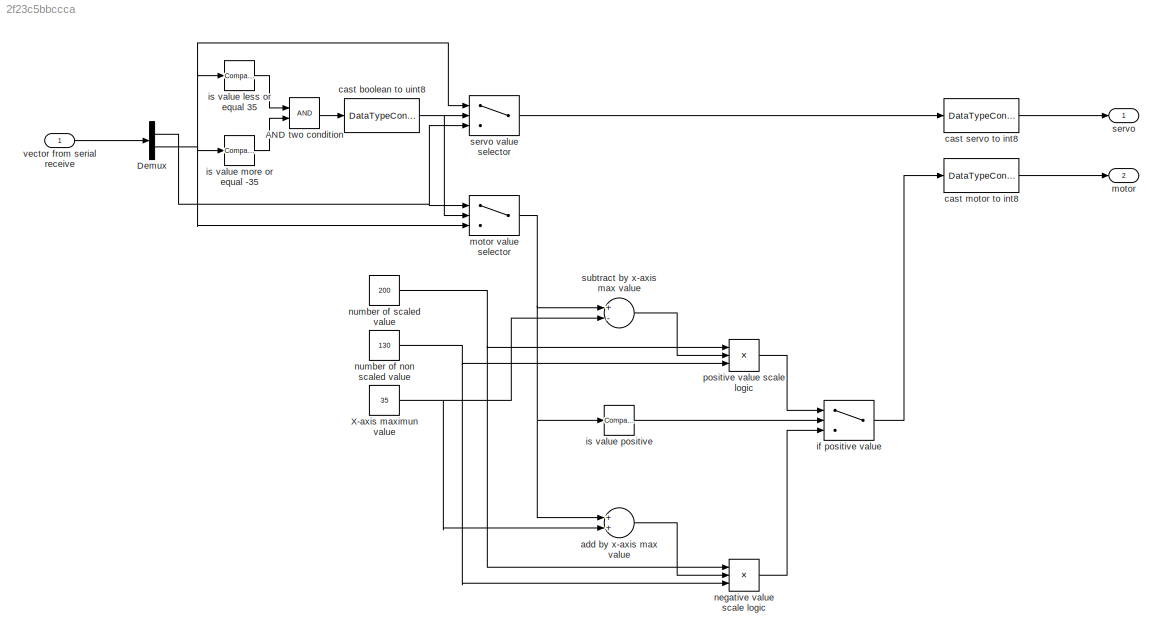
MODEL slx_2f23c5bbccca
KIND model
CONFIG AbsTol = auto
CONFIG EnableMultiTasking = on
CONFIG FixedStep = auto
CONFIG MaxStep = auto
CONFIG MinStep = auto
CONFIG RelTol = 1e-3
CONFIG SampleTimeConstraint = Unconstrained
CONFIG Solver = FixedStepDiscrete
CONFIG SolverName = FixedStepDiscrete
CONFIG StartTime = 0.0
CONFIG StopTime = inf
BLOCK [Logic] AND two condition
  AllPortsSameDT = off
  OutDataTypeStr = boolean
  Ports = [2, 1]
BLOCK [Demux] Demux
  DisplayOption = bar
  Outputs = 2
  Ports = [1, 2]
BLOCK [Constant] X-axis maximun value
  Value = 35
BLOCK [Sum] add by x-axis max value
  InputSameDT = off
  OutDataTypeStr = Inherit: Inherit via internal rule
  Ports = [2, 1]
  SaturateOnIntegerOverflow = off
BLOCK [DataTypeConversion] cast boolean to uint8
  OutDataTypeStr = uint8
  RndMeth = Floor
  SaturateOnIntegerOverflow = off
BLOCK [DataTypeConversion] cast motor to int8
  OutDataTypeStr = int8
  RndMeth = Floor
  SaturateOnIntegerOverflow = off
BLOCK [DataTypeConversion] cast servo to int8
  OutDataTypeStr = int8
  RndMeth = Floor
  SaturateOnIntegerOverflow = off
BLOCK [Switch] if positive value
  Criteria = u2 ~= 0
  InputSameDT = off
  SaturateOnIntegerOverflow = off
BLOCK [Reference] is value less or equal 35  REF=simulink/Logic and Bit
Operations/Compare
To Constant
  Ports = [1, 1]
  SourceBlock = simulink/Logic and Bit\nOperations/Compare\nTo Constant
  SourceType = Compare To Constant
BLOCK [Reference] is value more or equal -35  REF=simulink/Logic and Bit
Operations/Compare
To Constant
  Ports = [1, 1]
  SourceBlock = simulink/Logic and Bit\nOperations/Compare\nTo Constant
  SourceType = Compare To Constant
BLOCK [Reference] is value positive  REF=simulink/Logic and Bit
Operations/Compare
To Constant
  Ports = [1, 1]
  SourceBlock = simulink/Logic and Bit\nOperations/Compare\nTo Constant
  SourceType = Compare To Constant
BLOCK [Outport] motor
  IconDisplay = Port number
  Port = 2
BLOCK [Switch] motor value selector 
  Criteria = u2 ~= 0
  InputSameDT = off
  SaturateOnIntegerOverflow = off
BLOCK [Product] negative value scale logic
  InputSameDT = off
  Inputs = **/
  OutDataTypeStr = Inherit: Inherit via internal rule
  Ports = [3, 1]
  RndMeth = Floor
  SaturateOnIntegerOverflow = off
BLOCK [Constant] number of non scaled value
  Value = 130
BLOCK [Constant] number of scaled value
  Value = 200
BLOCK [Product] positive value scale logic
  InputSameDT = off
  Inputs = **/
  OutDataTypeStr = Inherit: Inherit via internal rule
  Ports = [3, 1]
  RndMeth = Floor
  SaturateOnIntegerOverflow = off
BLOCK [Outport] servo
  IconDisplay = Port number
BLOCK [Switch] servo value selector
  Criteria = u2 ~= 0
  InputSameDT = off
  SaturateOnIntegerOverflow = off
BLOCK [Sum] subtract by x-axis max value
  InputSameDT = off
  Inputs = +-
  OutDataTypeStr = Inherit: Inherit via internal rule
  Ports = [2, 1]
  SaturateOnIntegerOverflow = off
BLOCK [Inport] vector from serial receive
  IconDisplay = Port number
  OutDataTypeStr = int8
LINE AND two condition:1 -> cast boolean to uint8:1
NET Demux:1 -> motor value selector :1, servo value selector:3
NET Demux:2 -> is value less or equal 35:1, is value more or equal -35:1, motor value selector :3, servo value selector:1
NET X-axis maximun value:1 -> add by x-axis max value:2, subtract by x-axis max value:2
LINE add by x-axis max value:1 -> negative value scale logic:2
NET cast boolean to uint8:1 -> motor value selector :2, servo value selector:2
LINE cast motor to int8:1 -> motor:1
LINE cast servo to int8:1 -> servo:1
LINE if positive value:1 -> cast motor to int8:1
LINE is value less or equal 35:1 -> AND two condition:1
LINE is value more or equal -35:1 -> AND two condition:2
LINE is value positive:1 -> if positive value:2
NET motor value selector :1 -> add by x-axis max value:1, is value positive:1, subtract by x-axis max value:1
LINE negative value scale logic:1 -> if positive value:3
NET number of non scaled value:1 -> negative value scale logic:3, positive value scale logic:3
NET number of scaled value:1 -> negative value scale logic:1, positive value scale logic:1
LINE positive value scale logic:1 -> if positive value:1
LINE servo value selector:1 -> cast servo to int8:1
LINE subtract by x-axis max value:1 -> positive value scale logic:2
LINE vector from serial receive:1 -> Demux:1
note: NET lines group one-source signal fan-out (src -> all destinations, sorted); 1:1 wires keep LINE
